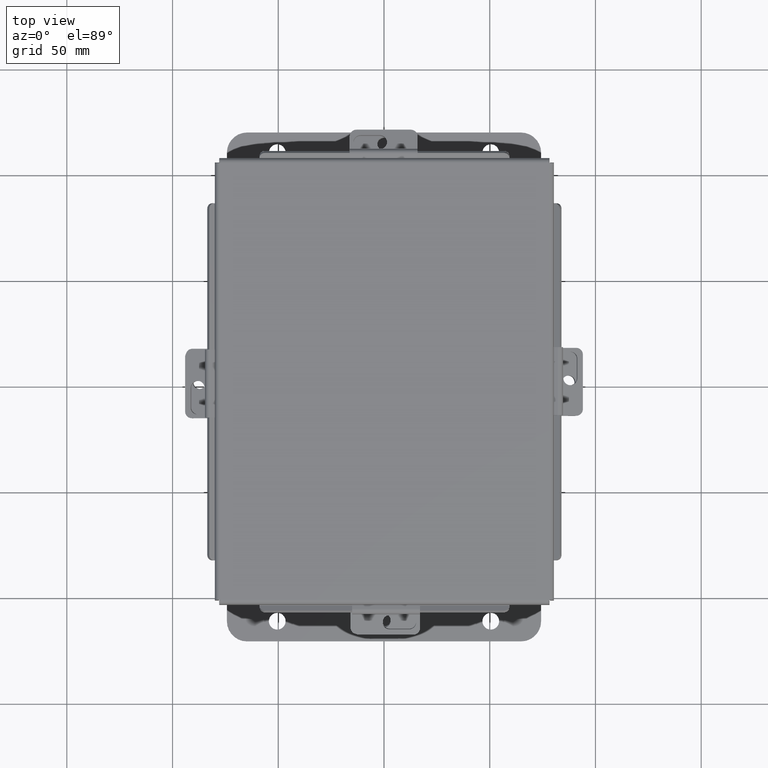
[diagram: clean part render]
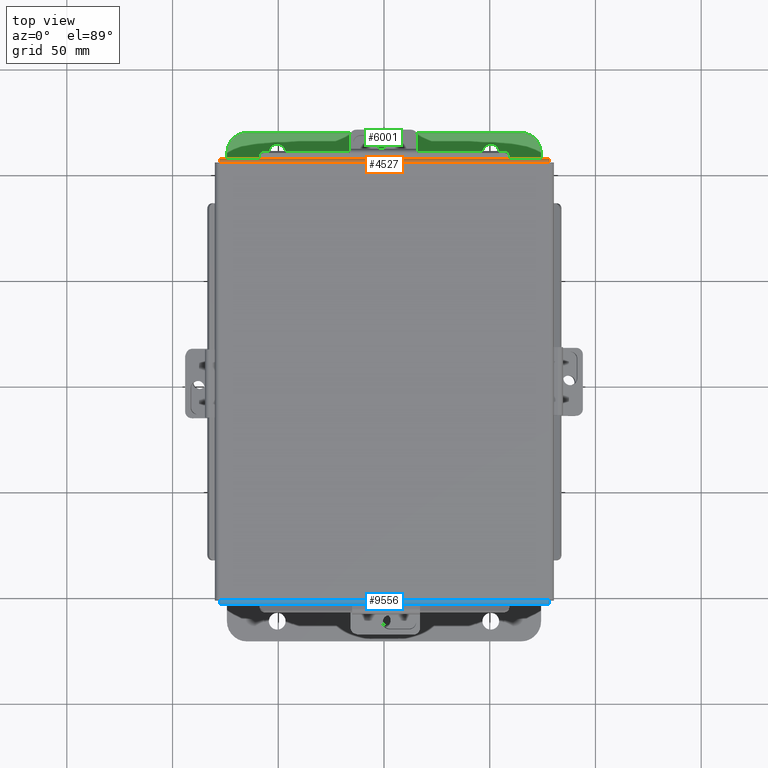
[diagram: same view with three faces highlighted in distinct colors, each labeled with its STEP entity id]
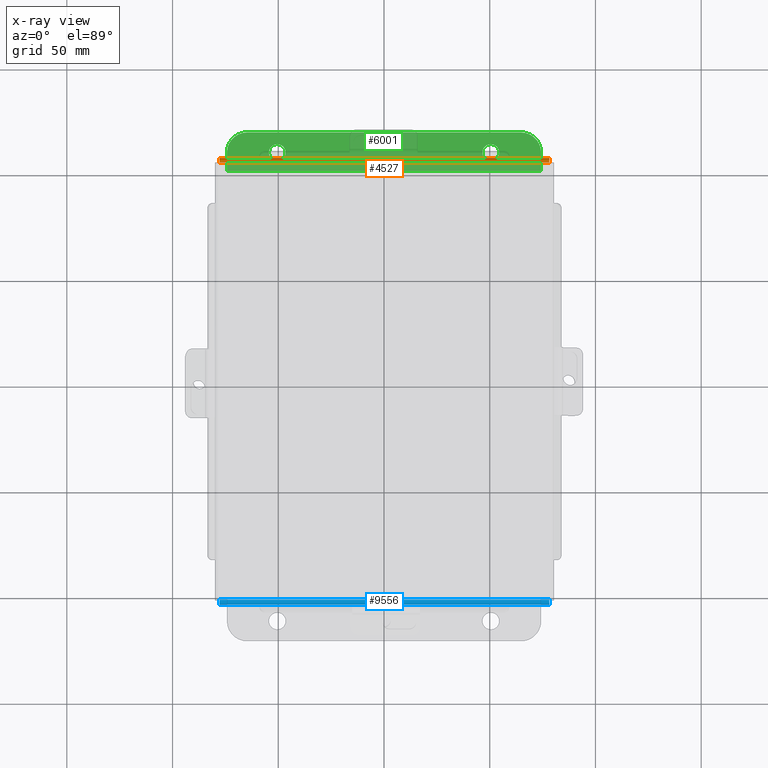
[diagram: x-ray of the same camera — body ghosted, the three highlighted faces saturated]
A machine part, top view with three faces highlighted in distinct colors.
The next image is the same camera in x-ray (body ghosted, the three faces saturated) — at least one of them is partly hidden behind the body in this view.
Their STEP definitions:

[orange] entity #4527 — the highlighted cylindrical surface (edge-blend (fillet) strip) has radius 2.2276 mm, axis along (1, -0, 0).
#62 = CARTESIAN_POINT ( 'NONE',  ( -3.072502621458755200, 4.145181066258669700, -0.03116738457852794700 ) ) ;
#169 = CYLINDRICAL_SURFACE ( 'NONE', #4651, 0.08770000000000026400 ) ;
#324 = CARTESIAN_POINT ( 'NONE',  ( 3.070526310729380500, 4.112717384578529000, -0.06363106625866839200 ) ) ;
#346 = EDGE_CURVE ( 'NONE', #5427, #7306, #3518, .T. ) ;
#823 = CARTESIAN_POINT ( 'NONE',  ( -3.071020388411722200, 4.122445747341801700, -0.05713078207832041800 ) ) ;
#993 = FACE_OUTER_BOUND ( 'NONE', #5606, .T. ) ;
#1075 = CARTESIAN_POINT ( 'NONE',  ( 3.072008543776413500, 4.138680782078322900, -0.04089574734180008400 ) ) ;
#1107 = CARTESIAN_POINT ( 'NONE',  ( 3.074478932188136100, 4.156250000000001800, 0.01299999999999985900 ) ) ;
#1347 = DIRECTION ( 'NONE',  ( -1.000000000000000000, -0.0000000000000000000, -0.0000000000000000000 ) ) ;
#1548 = CARTESIAN_POINT ( 'NONE',  ( -3.073984854505788200, 4.156250000000001800, 0.001520096845007165000 ) ) ;
#1581 = CARTESIAN_POINT ( 'NONE',  ( -3.069538155364688800, 4.091505289458310400, -0.07241740374381125400 ) ) ;
#1828 = CARTESIAN_POINT ( 'NONE',  ( 3.073490776823447800, 4.153967403743813200, -0.009955289458308985400 ) ) ;
#2006 = VERTEX_POINT ( 'NONE', #4740 ) ;
#2049 = EDGE_CURVE ( 'NONE', #3231, #2006, #6507, .T. ) ;
#2217 = EDGE_CURVE ( 'NONE', #5427, #3231, #8449, .T. ) ;
#2265 = ORIENTED_EDGE ( 'NONE', *, *, #346, .T. ) ;
#2339 = CARTESIAN_POINT ( 'NONE',  ( -3.068549999999999200, 4.068550000000001900, -0.07469999999999994700 ) ) ;
#2577 = CARTESIAN_POINT ( 'NONE',  ( 3.074478932188136100, 4.156250000000001800, 0.01299999999999985900 ) ) ;
#2587 = VECTOR ( 'NONE', #7805, 39.37007874015748100 ) ;
#2680 = CARTESIAN_POINT ( 'NONE',  ( 3.156250000000000000, 4.156250000000001800, 0.01299999999999986400 ) ) ;
#2862 = DIRECTION ( 'NONE',  ( 0.0000000000000000000, 1.000000000000000000, -3.358350761880586900E-015 ) ) ;
#3231 = VERTEX_POINT ( 'NONE', #5238 ) ;
#3336 = DIRECTION ( 'NONE',  ( 1.000000000000000000, 0.0000000000000000000, 0.0000000000000000000 ) ) ;
#3518 = LINE ( 'NONE', #2680, #2587 ) ;
#3566 = CARTESIAN_POINT ( 'NONE',  ( -3.074478932188133800, 4.068550000000001900, 0.01300000000000015000 ) ) ;
#3794 = CARTESIAN_POINT ( 'NONE',  ( -3.073490776823444300, 4.153967403743814100, -0.009955289458308987100 ) ) ;
#4181 = CARTESIAN_POINT ( 'NONE',  ( -3.074478932188133800, 4.156250000000001800, 0.01299999999999986400 ) ) ;
#4524 = CARTESIAN_POINT ( 'NONE',  ( -3.074478932188133800, 4.156250000000001800, 0.01299999999999986400 ) ) ;
#4527 = ADVANCED_FACE ( 'NONE', ( #993 ), #169, .T. ) ;
#4651 = AXIS2_PLACEMENT_3D ( 'NONE', #3566, #1347, #2862 ) ;
#4740 = CARTESIAN_POINT ( 'NONE',  ( 3.068550000000001000, 4.068550000000001900, -0.07469999999999994700 ) ) ;
#4770 = CARTESIAN_POINT ( 'NONE',  ( 3.069538155364690100, 4.091505289458312200, -0.07241740374381124000 ) ) ;
#5066 = VECTOR ( 'NONE', #3336, 39.37007874015748100 ) ;
#5238 = CARTESIAN_POINT ( 'NONE',  ( -3.068549999999999200, 4.068550000000001900, -0.07469999999999994700 ) ) ;
#5268 = CARTESIAN_POINT ( 'NONE',  ( -3.072008543776410900, 4.138680782078321100, -0.04089574734180007700 ) ) ;
#5427 = VERTEX_POINT ( 'NONE', #4181 ) ;
#5505 = CARTESIAN_POINT ( 'NONE',  ( 3.071020388411724400, 4.122445747341801700, -0.05713078207832042500 ) ) ;
#5606 = EDGE_LOOP ( 'NONE', ( #7114, #6703, #2265, #6183 ) ) ;
#5982 = CARTESIAN_POINT ( 'NONE',  ( -3.070526310729377400, 4.112717384578529000, -0.06363106625866842000 ) ) ;
#6049 = EDGE_CURVE ( 'NONE', #2006, #7306, #7721, .T. ) ;
#6183 = ORIENTED_EDGE ( 'NONE', *, *, #6049, .F. ) ;
#6217 = CARTESIAN_POINT ( 'NONE',  ( 3.072502621458758300, 4.145181066258670600, -0.03116738457852795100 ) ) ;
#6507 = LINE ( 'NONE', #7704, #5066 ) ;
#6700 = CARTESIAN_POINT ( 'NONE',  ( -3.069044077682344000, 4.080029903154994000, -0.07469999999999994700 ) ) ;
#6703 = ORIENTED_EDGE ( 'NONE', *, *, #2217, .F. ) ;
#6960 = CARTESIAN_POINT ( 'NONE',  ( 3.073984854505792200, 4.156250000000001800, 0.001520096845007165400 ) ) ;
#7114 = ORIENTED_EDGE ( 'NONE', *, *, #2049, .F. ) ;
#7306 = VERTEX_POINT ( 'NONE', #1107 ) ;
#7677 = CARTESIAN_POINT ( 'NONE',  ( 3.068550000000001000, 4.068550000000001900, -0.07469999999999994700 ) ) ;
#7704 = CARTESIAN_POINT ( 'NONE',  ( -3.074478932188133800, 4.068550000000001900, -0.07469999999999994700 ) ) ;
#7721 = B_SPLINE_CURVE_WITH_KNOTS ( 'NONE', 3,
 ( #7677, #8406, #4770, #324, #5505, #1075, #6217, #1828, #6960, #2577 ),
 .UNSPECIFIED., .F., .F.,
 ( 4, 2, 2, 2, 4 ),
 ( 0.0000000000000000000, 0.2500000000000000000, 0.5000000000000000000, 0.7500000000000000000, 1.000000000000000000 ),
 .UNSPECIFIED. ) ;
#7805 = DIRECTION ( 'NONE',  ( 1.000000000000000000, -3.639204975723964700E-032, 1.189815042988946700E-046 ) ) ;
#8406 = CARTESIAN_POINT ( 'NONE',  ( 3.069044077682345300, 4.080029903154994000, -0.07469999999999994700 ) ) ;
#8449 = B_SPLINE_CURVE_WITH_KNOTS ( 'NONE', 3,
 ( #4524, #1548, #3794, #62, #5268, #823, #5982, #1581, #6700, #2339 ),
 .UNSPECIFIED., .F., .F.,
 ( 4, 2, 2, 2, 4 ),
 ( 0.0000000000000000000, 0.2500000000000000000, 0.5000000000000000000, 0.7500000000000000000, 1.000000000000000000 ),
 .UNSPECIFIED. ) ;

[blue] entity #9556 — the highlighted cylindrical surface (edge-blend (fillet) strip) has radius 2.2276 mm, axis along (-1, 0, -0).
#83 = CARTESIAN_POINT ( 'NONE',  ( 3.070526310729379600, -4.112717384578526300, -0.06363106625866842000 ) ) ;
#207 = CARTESIAN_POINT ( 'NONE',  ( -3.156249999999997800, -4.156249999999998200, 0.01299999999999986400 ) ) ;
#705 = EDGE_CURVE ( 'NONE', #6159, #5142, #4040, .T. ) ;
#747 = CARTESIAN_POINT ( 'NONE',  ( -3.069538155364688800, -4.091505289458308600, -0.07241740374381124000 ) ) ;
#830 = ORIENTED_EDGE ( 'NONE', *, *, #4272, .F. ) ;
#840 = CARTESIAN_POINT ( 'NONE',  ( 3.069044077682346200, -4.080029903154990500, -0.07469999999999994700 ) ) ;
#1167 = CARTESIAN_POINT ( 'NONE',  ( -3.074478932188133800, -4.156249999999998200, 0.01299999999999985900 ) ) ;
#1197 = CARTESIAN_POINT ( 'NONE',  ( 3.074478932188136100, -4.156249999999998200, 0.01299999999999986400 ) ) ;
#1267 = VECTOR ( 'NONE', #7600, 39.37007874015748100 ) ;
#1367 = DIRECTION ( 'NONE',  ( 1.000000000000000000, -0.0000000000000000000, -0.0000000000000000000 ) ) ;
#1500 = CARTESIAN_POINT ( 'NONE',  ( -3.071020388411722200, -4.122445747341799000, -0.05713078207832042500 ) ) ;
#1941 = LINE ( 'NONE', #7887, #5937 ) ;
#2051 = DIRECTION ( 'NONE',  ( -1.000000000000000000, 0.0000000000000000000, 0.0000000000000000000 ) ) ;
#2263 = CARTESIAN_POINT ( 'NONE',  ( -3.072502621458755600, -4.145181066258667000, -0.03116738457852795100 ) ) ;
#2294 = AXIS2_PLACEMENT_3D ( 'NONE', #3592, #1367, #8732 ) ;
#3004 = CARTESIAN_POINT ( 'NONE',  ( -3.073984854505790000, -4.156249999999999100, 0.001520096845007165400 ) ) ;
#3048 = VERTEX_POINT ( 'NONE', #1167 ) ;
#3059 = CARTESIAN_POINT ( 'NONE',  ( 3.074478932188136100, -4.156249999999998200, 0.01299999999999986400 ) ) ;
#3220 = CARTESIAN_POINT ( 'NONE',  ( -3.068549999999998800, -4.068549999999999200, -0.07469999999999994700 ) ) ;
#3325 = ORIENTED_EDGE ( 'NONE', *, *, #5512, .F. ) ;
#3463 = ORIENTED_EDGE ( 'NONE', *, *, #705, .F. ) ;
#3561 = EDGE_LOOP ( 'NONE', ( #830, #3463, #5904, #3325 ) ) ;
#3592 = CARTESIAN_POINT ( 'NONE',  ( 3.074478932188136100, -4.068549999999998300, 0.01300000000000015000 ) ) ;
#3810 = CARTESIAN_POINT ( 'NONE',  ( 3.072502621458757000, -4.145181066258665200, -0.03116738457852794700 ) ) ;
#4040 = B_SPLINE_CURVE_WITH_KNOTS ( 'NONE', 3,
 ( #3059, #7446, #8185, #3810, #8946, #4538, #83, #5280, #840, #5997 ),
 .UNSPECIFIED., .F., .F.,
 ( 4, 2, 2, 2, 4 ),
 ( 0.0000000000000000000, 0.2500000000000000000, 0.5000000000000000000, 0.7500000000000000000, 1.000000000000000000 ),
 .UNSPECIFIED. ) ;
#4272 = EDGE_CURVE ( 'NONE', #5142, #5716, #1941, .T. ) ;
#4455 = CARTESIAN_POINT ( 'NONE',  ( -3.068549999999998800, -4.068549999999999200, -0.07469999999999994700 ) ) ;
#4538 = CARTESIAN_POINT ( 'NONE',  ( 3.071020388411724000, -4.122445747341799000, -0.05713078207832041800 ) ) ;
#5142 = VERTEX_POINT ( 'NONE', #7544 ) ;
#5187 = EDGE_CURVE ( 'NONE', #6159, #3048, #8544, .T. ) ;
#5280 = CARTESIAN_POINT ( 'NONE',  ( 3.069538155364690100, -4.091505289458307700, -0.07241740374381125400 ) ) ;
#5512 = EDGE_CURVE ( 'NONE', #5716, #3048, #9473, .T. ) ;
#5716 = VERTEX_POINT ( 'NONE', #3220 ) ;
#5904 = ORIENTED_EDGE ( 'NONE', *, *, #5187, .T. ) ;
#5915 = CARTESIAN_POINT ( 'NONE',  ( -3.070526310729377400, -4.112717384578524500, -0.06363106625866839200 ) ) ;
#5937 = VECTOR ( 'NONE', #2051, 39.37007874015748100 ) ;
#5997 = CARTESIAN_POINT ( 'NONE',  ( 3.068550000000001400, -4.068549999999998300, -0.07469999999999994700 ) ) ;
#6159 = VERTEX_POINT ( 'NONE', #1197 ) ;
#6419 = CYLINDRICAL_SURFACE ( 'NONE', #2294, 0.08770000000000026400 ) ;
#6614 = CARTESIAN_POINT ( 'NONE',  ( -3.072008543776411300, -4.138680782078320200, -0.04089574734180008400 ) ) ;
#6625 = FACE_OUTER_BOUND ( 'NONE', #3561, .T. ) ;
#7379 = CARTESIAN_POINT ( 'NONE',  ( -3.073490776823445200, -4.153967403743810600, -0.009955289458308985400 ) ) ;
#7446 = CARTESIAN_POINT ( 'NONE',  ( 3.073984854505790800, -4.156249999999998200, 0.001520096845007165000 ) ) ;
#7544 = CARTESIAN_POINT ( 'NONE',  ( 3.068550000000001400, -4.068549999999998300, -0.07469999999999994700 ) ) ;
#7600 = DIRECTION ( 'NONE',  ( -1.000000000000000000, 3.639204975723964700E-032, 1.189815042988946700E-046 ) ) ;
#7887 = CARTESIAN_POINT ( 'NONE',  ( 3.074478932188136100, -4.068549999999998300, -0.07469999999999994700 ) ) ;
#8129 = CARTESIAN_POINT ( 'NONE',  ( -3.074478932188133800, -4.156249999999998200, 0.01299999999999985900 ) ) ;
#8185 = CARTESIAN_POINT ( 'NONE',  ( 3.073490776823448300, -4.153967403743810600, -0.009955289458308987100 ) ) ;
#8544 = LINE ( 'NONE', #207, #1267 ) ;
#8732 = DIRECTION ( 'NONE',  ( 0.0000000000000000000, -1.000000000000000000, -3.358350761880586900E-015 ) ) ;
#8847 = CARTESIAN_POINT ( 'NONE',  ( -3.069044077682344400, -4.080029903154990500, -0.07469999999999994700 ) ) ;
#8946 = CARTESIAN_POINT ( 'NONE',  ( 3.072008543776413500, -4.138680782078318500, -0.04089574734180007700 ) ) ;
#9473 = B_SPLINE_CURVE_WITH_KNOTS ( 'NONE', 3,
 ( #4455, #8847, #747, #5915, #1500, #6614, #2263, #7379, #3004, #8129 ),
 .UNSPECIFIED., .F., .F.,
 ( 4, 2, 2, 2, 4 ),
 ( 0.0000000000000000000, 0.2500000000000000000, 0.5000000000000000000, 0.7500000000000000000, 1.000000000000000000 ),
 .UNSPECIFIED. ) ;
#9556 = ADVANCED_FACE ( 'NONE', ( #6625 ), #6419, .T. ) ;

[green] entity #6001 — the highlighted planar face has unit normal (0, 0, 1).
#74 = EDGE_CURVE ( 'NONE', #847, #6842, #1186, .T. ) ;
#259 = DIRECTION ( 'NONE',  ( 0.0000000000000000000, 3.702694488566362300E-015, 1.000000000000000000 ) ) ;
#323 = DIRECTION ( 'NONE',  ( 0.0000000000000000000, -1.000000000000000000, 3.502369222646487400E-015 ) ) ;
#444 = DIRECTION ( 'NONE',  ( 0.0000000000000000000, -1.000000000000000000, 4.370956789862820400E-015 ) ) ;
#584 = ORIENTED_EDGE ( 'NONE', *, *, #2422, .T. ) ;
#713 = AXIS2_PLACEMENT_3D ( 'NONE', #1140, #6282, #1905 ) ;
#836 = VERTEX_POINT ( 'NONE', #9532 ) ;
#847 = VERTEX_POINT ( 'NONE', #1406 ) ;
#908 = CARTESIAN_POINT ( 'NONE',  ( -1.987799999999998900, 0.3628000000000001800, -3.112300000000001200 ) ) ;
#1001 = VECTOR ( 'NONE', #2207, 39.37007874015748100 ) ;
#1095 = CARTESIAN_POINT ( 'NONE',  ( 1.987800000000000700, 0.3628000000000001800, -3.112300000000001200 ) ) ;
#1127 = VERTEX_POINT ( 'NONE', #6657 ) ;
#1140 = CARTESIAN_POINT ( 'NONE',  ( -2.550299999999998200, 0.3628000000000002900, -3.112300000000001200 ) ) ;
#1186 = LINE ( 'NONE', #6721, #6822 ) ;
#1357 = EDGE_CURVE ( 'NONE', #7553, #2057, #4261, .T. ) ;
#1406 = CARTESIAN_POINT ( 'NONE',  ( 2.925300000000000500, 0.3628000000000002300, -3.112300000000001200 ) ) ;
#1630 = CIRCLE ( 'NONE', #1966, 0.1560000000000001700 ) ;
#1688 = ORIENTED_EDGE ( 'NONE', *, *, #2125, .F. ) ;
#1708 = VECTOR ( 'NONE', #7045, 39.37007874015748100 ) ;
#1836 = EDGE_LOOP ( 'NONE', ( #8068, #4607 ) ) ;
#1851 = DIRECTION ( 'NONE',  ( 0.0000000000000000000, -1.000000000000000000, 3.502369222646487400E-015 ) ) ;
#1865 = CARTESIAN_POINT ( 'NONE',  ( -2.925299999999999600, 0.3628000000000002900, -3.112300000000001200 ) ) ;
#1905 = DIRECTION ( 'NONE',  ( 0.0000000000000000000, -1.000000000000000000, 4.370956789862820400E-015 ) ) ;
#1942 = CARTESIAN_POINT ( 'NONE',  ( -2.925299999999999100, 0.01299999999999996600, -3.112299999999999800 ) ) ;
#1966 = AXIS2_PLACEMENT_3D ( 'NONE', #1095, #6235, #1851 ) ;
#2022 = EDGE_CURVE ( 'NONE', #836, #7982, #3358, .T. ) ;
#2057 = VERTEX_POINT ( 'NONE', #1865 ) ;
#2080 = VERTEX_POINT ( 'NONE', #5843 ) ;
#2125 = EDGE_CURVE ( 'NONE', #2080, #3318, #8618, .T. ) ;
#2207 = DIRECTION ( 'NONE',  ( 1.000000000000000000, -0.0000000000000000000, -0.0000000000000000000 ) ) ;
#2281 = VECTOR ( 'NONE', #7707, 39.37007874015748100 ) ;
#2422 = EDGE_CURVE ( 'NONE', #7982, #836, #1630, .T. ) ;
#2606 = ORIENTED_EDGE ( 'NONE', *, *, #2022, .T. ) ;
#2618 = AXIS2_PLACEMENT_3D ( 'NONE', #6893, #259, #4010 ) ;
#2699 = ORIENTED_EDGE ( 'NONE', *, *, #3024, .T. ) ;
#2978 = EDGE_CURVE ( 'NONE', #6842, #7553, #9340, .T. ) ;
#3024 = EDGE_CURVE ( 'NONE', #2080, #2057, #3559, .T. ) ;
#3056 = CARTESIAN_POINT ( 'NONE',  ( -1.987799999999998900, 0.3628000000000001800, -3.112300000000001200 ) ) ;
#3206 = CARTESIAN_POINT ( 'NONE',  ( 2.925300000000000500, 0.01300000000000010700, -3.112299999999999800 ) ) ;
#3273 = PLANE ( 'NONE',  #2618 ) ;
#3318 = VERTEX_POINT ( 'NONE', #4635 ) ;
#3358 = CIRCLE ( 'NONE', #9339, 0.1560000000000001700 ) ;
#3467 = ORIENTED_EDGE ( 'NONE', *, *, #2978, .F. ) ;
#3492 = AXIS2_PLACEMENT_3D ( 'NONE', #3056, #8183, #3807 ) ;
#3505 = VERTEX_POINT ( 'NONE', #9170 ) ;
#3559 = CIRCLE ( 'NONE', #713, 0.3750000000000000600 ) ;
#3762 = EDGE_LOOP ( 'NONE', ( #4927, #7467, #1688, #2699, #6474, #3467 ) ) ;
#3807 = DIRECTION ( 'NONE',  ( 0.0000000000000000000, -1.000000000000000000, 3.502369222646487400E-015 ) ) ;
#3864 = EDGE_LOOP ( 'NONE', ( #584, #2606 ) ) ;
#4010 = DIRECTION ( 'NONE',  ( 0.0000000000000000000, -1.000000000000000000, 3.702694488566362300E-015 ) ) ;
#4077 = DIRECTION ( 'NONE',  ( 0.0000000000000000000, -1.000000000000000000, 3.502369222646487400E-015 ) ) ;
#4184 = CIRCLE ( 'NONE', #9331, 0.3750000000000000600 ) ;
#4261 = LINE ( 'NONE', #4866, #1708 ) ;
#4294 = FACE_BOUND ( 'NONE', #1836, .T. ) ;
#4607 = ORIENTED_EDGE ( 'NONE', *, *, #7836, .T. ) ;
#4635 = CARTESIAN_POINT ( 'NONE',  ( 2.550300000000000500, 0.7378000000000002300, -3.112300000000003000 ) ) ;
#4769 = DIRECTION ( 'NONE',  ( -0.0000000000000000000, -3.702694488566362300E-015, -1.000000000000000000 ) ) ;
#4866 = CARTESIAN_POINT ( 'NONE',  ( -2.925299999999999600, 0.7378000000000002300, -3.112300000000003000 ) ) ;
#4898 = DIRECTION ( 'NONE',  ( 0.0000000000000000000, 3.702694488566362300E-015, 1.000000000000000000 ) ) ;
#4927 = ORIENTED_EDGE ( 'NONE', *, *, #74, .F. ) ;
#5509 = CIRCLE ( 'NONE', #7309, 0.1560000000000001700 ) ;
#5843 = CARTESIAN_POINT ( 'NONE',  ( -2.550299999999998200, 0.7378000000000002300, -3.112300000000003000 ) ) ;
#6001 = ADVANCED_FACE ( 'NONE', ( #4294, #6783, #6903 ), #3273, .T. ) ;
#6235 = DIRECTION ( 'NONE',  ( -0.0000000000000000000, -3.702694488566362300E-015, -1.000000000000000000 ) ) ;
#6282 = DIRECTION ( 'NONE',  ( 0.0000000000000000000, 3.702694488566362300E-015, 1.000000000000000000 ) ) ;
#6474 = ORIENTED_EDGE ( 'NONE', *, *, #1357, .F. ) ;
#6657 = CARTESIAN_POINT ( 'NONE',  ( -1.987799999999998900, 0.5188000000000003700, -3.112300000000001600 ) ) ;
#6721 = CARTESIAN_POINT ( 'NONE',  ( 2.925300000000000500, 1.577762228432578300E-017, -3.112299999999999800 ) ) ;
#6783 = FACE_BOUND ( 'NONE', #3864, .T. ) ;
#6822 = VECTOR ( 'NONE', #8231, 39.37007874015748100 ) ;
#6842 = VERTEX_POINT ( 'NONE', #7245 ) ;
#6893 = CARTESIAN_POINT ( 'NONE',  ( 0.0000000000000000000, -1.083149218740318000E-014, -3.112299999999999800 ) ) ;
#6903 = FACE_OUTER_BOUND ( 'NONE', #3762, .T. ) ;
#7045 = DIRECTION ( 'NONE',  ( -0.0000000000000000000, 1.000000000000000000, -3.702694488566362300E-015 ) ) ;
#7245 = CARTESIAN_POINT ( 'NONE',  ( 2.925300000000000500, 0.01299999999999996600, -3.112299999999999800 ) ) ;
#7309 = AXIS2_PLACEMENT_3D ( 'NONE', #908, #8477, #4077 ) ;
#7382 = EDGE_CURVE ( 'NONE', #847, #3318, #4184, .T. ) ;
#7455 = EDGE_CURVE ( 'NONE', #1127, #3505, #5509, .T. ) ;
#7467 = ORIENTED_EDGE ( 'NONE', *, *, #7382, .T. ) ;
#7553 = VERTEX_POINT ( 'NONE', #1942 ) ;
#7707 = DIRECTION ( 'NONE',  ( -1.000000000000000000, 0.0000000000000000000, 0.0000000000000000000 ) ) ;
#7836 = EDGE_CURVE ( 'NONE', #3505, #1127, #9403, .T. ) ;
#7982 = VERTEX_POINT ( 'NONE', #8297 ) ;
#8066 = CARTESIAN_POINT ( 'NONE',  ( 2.925300000000000500, 0.7378000000000002300, -3.112300000000003000 ) ) ;
#8068 = ORIENTED_EDGE ( 'NONE', *, *, #7455, .T. ) ;
#8183 = DIRECTION ( 'NONE',  ( -0.0000000000000000000, -3.702694488566362300E-015, -1.000000000000000000 ) ) ;
#8231 = DIRECTION ( 'NONE',  ( -0.0000000000000000000, -1.000000000000000000, 3.702694488566362300E-015 ) ) ;
#8297 = CARTESIAN_POINT ( 'NONE',  ( 1.987800000000000700, 0.5188000000000003700, -3.112300000000001600 ) ) ;
#8477 = DIRECTION ( 'NONE',  ( -0.0000000000000000000, -3.702694488566362300E-015, -1.000000000000000000 ) ) ;
#8618 = LINE ( 'NONE', #8066, #1001 ) ;
#9170 = CARTESIAN_POINT ( 'NONE',  ( -1.987799999999998900, 0.2067999999999999800, -3.112300000000000700 ) ) ;
#9180 = CARTESIAN_POINT ( 'NONE',  ( 1.987800000000000700, 0.3628000000000001800, -3.112300000000001200 ) ) ;
#9312 = CARTESIAN_POINT ( 'NONE',  ( 2.550300000000000500, 0.3628000000000002300, -3.112300000000001200 ) ) ;
#9331 = AXIS2_PLACEMENT_3D ( 'NONE', #9312, #4898, #444 ) ;
#9339 = AXIS2_PLACEMENT_3D ( 'NONE', #9180, #4769, #323 ) ;
#9340 = LINE ( 'NONE', #3206, #2281 ) ;
#9403 = CIRCLE ( 'NONE', #3492, 0.1560000000000001700 ) ;
#9532 = CARTESIAN_POINT ( 'NONE',  ( 1.987800000000000700, 0.2067999999999999800, -3.112300000000000700 ) ) ;